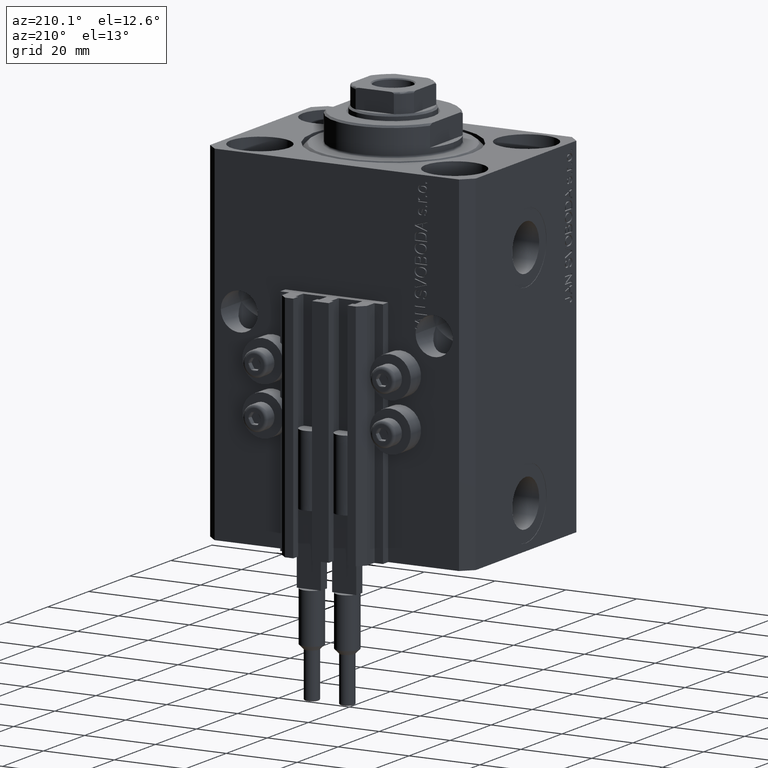
[diagram: clean part render]
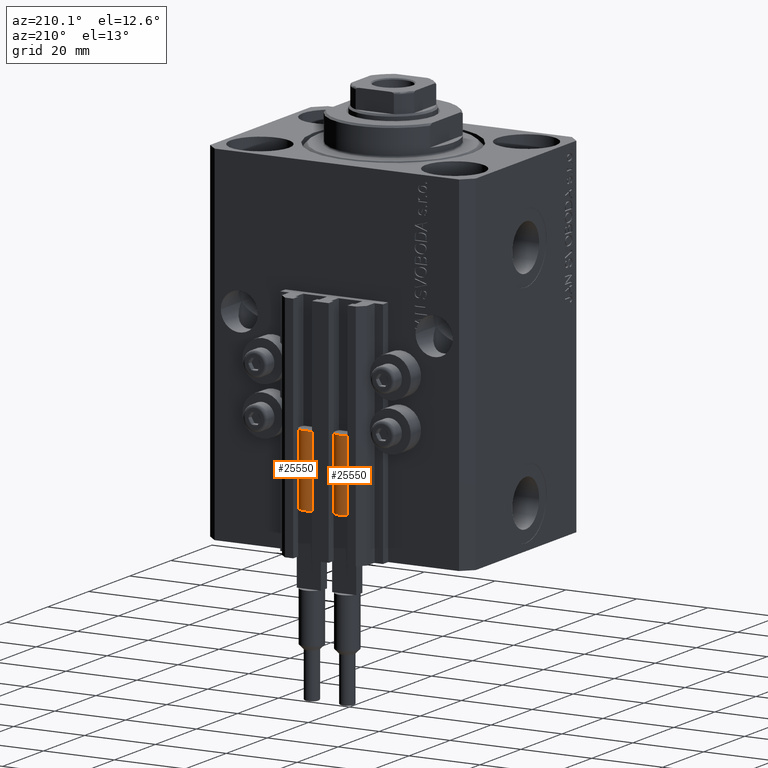
[diagram: same view with one multi-face feature highlighted, each face labeled with its STEP entity id]
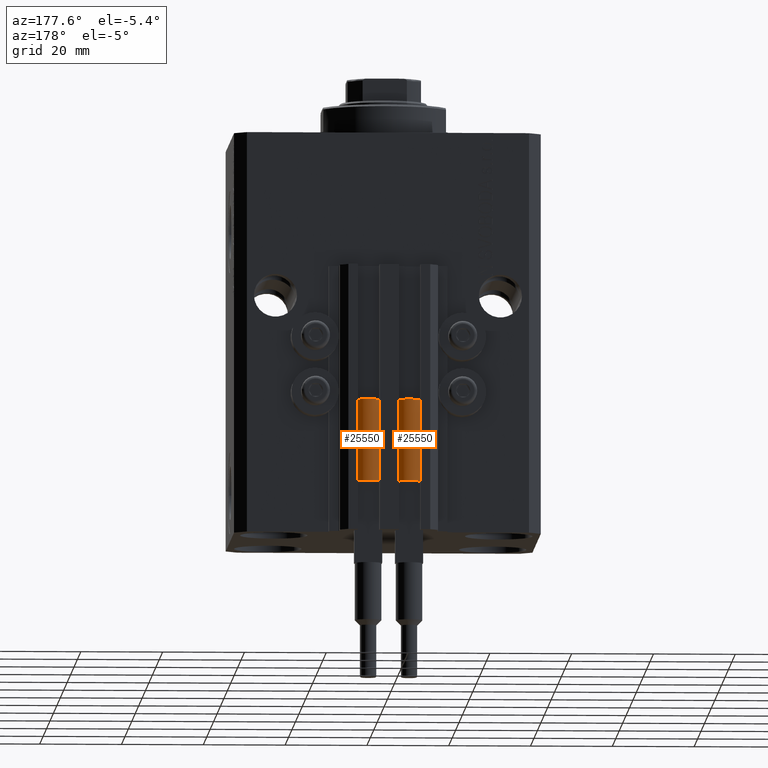
[diagram: same view with one multi-face feature highlighted, each face labeled with its STEP entity id]
A machine part, auxiliary view. The highlighted faces form ONE feature: a constant-radius fillet chain: 2 tangent blend faces with common blend radius 3.4 mm. The faces share edges in the B-rep.
A second angle (auxiliary view) of the same feature is appended — it is thin or edge-on in the first view.
Their STEP definitions:
[1] entity #25550 (Cylinder):
#1677 = CARTESIAN_POINT ( 'NONE',  ( 3.400000000000000355, 4.163799117101001052E-16, 0.000000000000000000 ) ) ;
#1744 = VERTEX_POINT ( 'NONE', #46341 ) ;
#2896 = DIRECTION ( 'NONE',  ( 0.000000000000000000, 0.000000000000000000, 1.000000000000000000 ) ) ;
#3733 = CYLINDRICAL_SURFACE ( 'NONE', #35802, 3.400000000000000355 ) ;
#3771 = VERTEX_POINT ( 'NONE', #24180 ) ;
#3959 = DIRECTION ( 'NONE',  ( 1.000000000000000000, 0.000000000000000000, 0.000000000000000000 ) ) ;
#3973 = FACE_OUTER_BOUND ( 'NONE', #19048, .T. ) ;
#4016 = AXIS2_PLACEMENT_3D ( 'NONE', #27557, #42419, #45835 ) ;
#4506 = DIRECTION ( 'NONE',  ( 1.000000000000000000, 0.000000000000000000, 0.000000000000000000 ) ) ;
#5475 = CIRCLE ( 'NONE', #4016, 3.400000000000000355 ) ;
#5848 = AXIS2_PLACEMENT_3D ( 'NONE', #48202, #2896, #17761 ) ;
#6674 = EDGE_CURVE ( 'NONE', #3771, #15572, #26857, .T. ) ;
#6874 = EDGE_CURVE ( 'NONE', #3771, #13173, #33274, .T. ) ;
#8393 = CIRCLE ( 'NONE', #12294, 3.400000000000000355 ) ;
#9678 = CARTESIAN_POINT ( 'NONE',  ( -3.400000000000000355, 0.000000000000000000, 0.000000000000000000 ) ) ;
#10804 = DIRECTION ( 'NONE',  ( -1.000000000000000000, 0.000000000000000000, 0.000000000000000000 ) ) ;
#11683 = VERTEX_POINT ( 'NONE', #40732 ) ;
#12294 = AXIS2_PLACEMENT_3D ( 'NONE', #37337, #41224, #3959 ) ;
#13173 = VERTEX_POINT ( 'NONE', #1677 ) ;
#14280 = CARTESIAN_POINT ( 'NONE',  ( 3.400000000000000355, 4.163799117101001052E-16, 20.00000000000000000 ) ) ;
#15572 = VERTEX_POINT ( 'NONE', #29239 ) ;
#16960 = ORIENTED_EDGE ( 'NONE', *, *, #26999, .F. ) ;
#17761 = DIRECTION ( 'NONE',  ( 1.000000000000000000, 0.000000000000000000, 0.000000000000000000 ) ) ;
#18275 = VERTEX_POINT ( 'NONE', #9678 ) ;
#18722 = VECTOR ( 'NONE', #26592, 1000.000000000000000 ) ;
#19048 = EDGE_LOOP ( 'NONE', ( #22198, #42381, #25069, #32093, #16960, #47542 ) ) ;
#21114 = DIRECTION ( 'NONE',  ( -0.000000000000000000, -0.000000000000000000, -1.000000000000000000 ) ) ;
#22159 = VECTOR ( 'NONE', #21114, 1000.000000000000000 ) ;
#22198 = ORIENTED_EDGE ( 'NONE', *, *, #6674, .F. ) ;
#24180 = CARTESIAN_POINT ( 'NONE',  ( 3.400000000000000355, 0.000000000000000000, 20.00000000000000000 ) ) ;
#25063 = AXIS2_PLACEMENT_3D ( 'NONE', #34473, #30332, #4506 ) ;
#25069 = ORIENTED_EDGE ( 'NONE', *, *, #39800, .T. ) ;
#25550 = ADVANCED_FACE ( 'NONE', ( #3973 ), #3733, .T. ) ;
#26192 = EDGE_CURVE ( 'NONE', #11683, #18275, #41693, .T. ) ;
#26592 = DIRECTION ( 'NONE',  ( -0.000000000000000000, -0.000000000000000000, -1.000000000000000000 ) ) ;
#26857 = CIRCLE ( 'NONE', #5848, 3.400000000000000355 ) ;
#26999 = EDGE_CURVE ( 'NONE', #1744, #11683, #8393, .T. ) ;
#27557 = CARTESIAN_POINT ( 'NONE',  ( 0.000000000000000000, 0.000000000000000000, 20.00000000000000000 ) ) ;
#29239 = CARTESIAN_POINT ( 'NONE',  ( 3.051229260478471428, 1.500000000000000000, 20.00000000000000000 ) ) ;
#29560 = CARTESIAN_POINT ( 'NONE',  ( 0.000000000000000000, 0.000000000000000000, 20.00000000000000000 ) ) ;
#30332 = DIRECTION ( 'NONE',  ( 0.000000000000000000, 0.000000000000000000, 1.000000000000000000 ) ) ;
#32093 = ORIENTED_EDGE ( 'NONE', *, *, #26192, .F. ) ;
#33274 = LINE ( 'NONE', #14280, #22159 ) ;
#34473 = CARTESIAN_POINT ( 'NONE',  ( 0.000000000000000000, 0.000000000000000000, 0.000000000000000000 ) ) ;
#35802 = AXIS2_PLACEMENT_3D ( 'NONE', #29560, #48081, #10804 ) ;
#35939 = EDGE_CURVE ( 'NONE', #15572, #1744, #5475, .T. ) ;
#37337 = CARTESIAN_POINT ( 'NONE',  ( 0.000000000000000000, 0.000000000000000000, 20.00000000000000000 ) ) ;
#38034 = CARTESIAN_POINT ( 'NONE',  ( -3.400000000000000355, 0.000000000000000000, 20.00000000000000000 ) ) ;
#39800 = EDGE_CURVE ( 'NONE', #13173, #18275, #46852, .T. ) ;
#40732 = CARTESIAN_POINT ( 'NONE',  ( -3.399999999999999467, -4.915049848600952119E-16, 20.00000000000000000 ) ) ;
#41224 = DIRECTION ( 'NONE',  ( 0.000000000000000000, 0.000000000000000000, 1.000000000000000000 ) ) ;
#41693 = LINE ( 'NONE', #38034, #18722 ) ;
#42381 = ORIENTED_EDGE ( 'NONE', *, *, #6874, .T. ) ;
#42419 = DIRECTION ( 'NONE',  ( 0.000000000000000000, 0.000000000000000000, 1.000000000000000000 ) ) ;
#45835 = DIRECTION ( 'NONE',  ( 1.000000000000000000, 0.000000000000000000, 0.000000000000000000 ) ) ;
#46341 = CARTESIAN_POINT ( 'NONE',  ( -3.051229260478471428, 1.500000000000000000, 20.00000000000000000 ) ) ;
#46852 = CIRCLE ( 'NONE', #25063, 3.400000000000000355 ) ;
#47542 = ORIENTED_EDGE ( 'NONE', *, *, #35939, .F. ) ;
#48081 = DIRECTION ( 'NONE',  ( -0.000000000000000000, -0.000000000000000000, -1.000000000000000000 ) ) ;
#48202 = CARTESIAN_POINT ( 'NONE',  ( 0.000000000000000000, 0.000000000000000000, 20.00000000000000000 ) ) ;
[2] entity #25550 (Cylinder):
#1677 = CARTESIAN_POINT ( 'NONE',  ( 3.400000000000000355, 4.163799117101001052E-16, 0.000000000000000000 ) ) ;
#1744 = VERTEX_POINT ( 'NONE', #46341 ) ;
#2896 = DIRECTION ( 'NONE',  ( 0.000000000000000000, 0.000000000000000000, 1.000000000000000000 ) ) ;
#3733 = CYLINDRICAL_SURFACE ( 'NONE', #35802, 3.400000000000000355 ) ;
#3771 = VERTEX_POINT ( 'NONE', #24180 ) ;
#3959 = DIRECTION ( 'NONE',  ( 1.000000000000000000, 0.000000000000000000, 0.000000000000000000 ) ) ;
#3973 = FACE_OUTER_BOUND ( 'NONE', #19048, .T. ) ;
#4016 = AXIS2_PLACEMENT_3D ( 'NONE', #27557, #42419, #45835 ) ;
#4506 = DIRECTION ( 'NONE',  ( 1.000000000000000000, 0.000000000000000000, 0.000000000000000000 ) ) ;
#5475 = CIRCLE ( 'NONE', #4016, 3.400000000000000355 ) ;
#5848 = AXIS2_PLACEMENT_3D ( 'NONE', #48202, #2896, #17761 ) ;
#6674 = EDGE_CURVE ( 'NONE', #3771, #15572, #26857, .T. ) ;
#6874 = EDGE_CURVE ( 'NONE', #3771, #13173, #33274, .T. ) ;
#8393 = CIRCLE ( 'NONE', #12294, 3.400000000000000355 ) ;
#9678 = CARTESIAN_POINT ( 'NONE',  ( -3.400000000000000355, 0.000000000000000000, 0.000000000000000000 ) ) ;
#10804 = DIRECTION ( 'NONE',  ( -1.000000000000000000, 0.000000000000000000, 0.000000000000000000 ) ) ;
#11683 = VERTEX_POINT ( 'NONE', #40732 ) ;
#12294 = AXIS2_PLACEMENT_3D ( 'NONE', #37337, #41224, #3959 ) ;
#13173 = VERTEX_POINT ( 'NONE', #1677 ) ;
#14280 = CARTESIAN_POINT ( 'NONE',  ( 3.400000000000000355, 4.163799117101001052E-16, 20.00000000000000000 ) ) ;
#15572 = VERTEX_POINT ( 'NONE', #29239 ) ;
#16960 = ORIENTED_EDGE ( 'NONE', *, *, #26999, .F. ) ;
#17761 = DIRECTION ( 'NONE',  ( 1.000000000000000000, 0.000000000000000000, 0.000000000000000000 ) ) ;
#18275 = VERTEX_POINT ( 'NONE', #9678 ) ;
#18722 = VECTOR ( 'NONE', #26592, 1000.000000000000000 ) ;
#19048 = EDGE_LOOP ( 'NONE', ( #22198, #42381, #25069, #32093, #16960, #47542 ) ) ;
#21114 = DIRECTION ( 'NONE',  ( -0.000000000000000000, -0.000000000000000000, -1.000000000000000000 ) ) ;
#22159 = VECTOR ( 'NONE', #21114, 1000.000000000000000 ) ;
#22198 = ORIENTED_EDGE ( 'NONE', *, *, #6674, .F. ) ;
#24180 = CARTESIAN_POINT ( 'NONE',  ( 3.400000000000000355, 0.000000000000000000, 20.00000000000000000 ) ) ;
#25063 = AXIS2_PLACEMENT_3D ( 'NONE', #34473, #30332, #4506 ) ;
#25069 = ORIENTED_EDGE ( 'NONE', *, *, #39800, .T. ) ;
#25550 = ADVANCED_FACE ( 'NONE', ( #3973 ), #3733, .T. ) ;
#26192 = EDGE_CURVE ( 'NONE', #11683, #18275, #41693, .T. ) ;
#26592 = DIRECTION ( 'NONE',  ( -0.000000000000000000, -0.000000000000000000, -1.000000000000000000 ) ) ;
#26857 = CIRCLE ( 'NONE', #5848, 3.400000000000000355 ) ;
#26999 = EDGE_CURVE ( 'NONE', #1744, #11683, #8393, .T. ) ;
#27557 = CARTESIAN_POINT ( 'NONE',  ( 0.000000000000000000, 0.000000000000000000, 20.00000000000000000 ) ) ;
#29239 = CARTESIAN_POINT ( 'NONE',  ( 3.051229260478471428, 1.500000000000000000, 20.00000000000000000 ) ) ;
#29560 = CARTESIAN_POINT ( 'NONE',  ( 0.000000000000000000, 0.000000000000000000, 20.00000000000000000 ) ) ;
#30332 = DIRECTION ( 'NONE',  ( 0.000000000000000000, 0.000000000000000000, 1.000000000000000000 ) ) ;
#32093 = ORIENTED_EDGE ( 'NONE', *, *, #26192, .F. ) ;
#33274 = LINE ( 'NONE', #14280, #22159 ) ;
#34473 = CARTESIAN_POINT ( 'NONE',  ( 0.000000000000000000, 0.000000000000000000, 0.000000000000000000 ) ) ;
#35802 = AXIS2_PLACEMENT_3D ( 'NONE', #29560, #48081, #10804 ) ;
#35939 = EDGE_CURVE ( 'NONE', #15572, #1744, #5475, .T. ) ;
#37337 = CARTESIAN_POINT ( 'NONE',  ( 0.000000000000000000, 0.000000000000000000, 20.00000000000000000 ) ) ;
#38034 = CARTESIAN_POINT ( 'NONE',  ( -3.400000000000000355, 0.000000000000000000, 20.00000000000000000 ) ) ;
#39800 = EDGE_CURVE ( 'NONE', #13173, #18275, #46852, .T. ) ;
#40732 = CARTESIAN_POINT ( 'NONE',  ( -3.399999999999999467, -4.915049848600952119E-16, 20.00000000000000000 ) ) ;
#41224 = DIRECTION ( 'NONE',  ( 0.000000000000000000, 0.000000000000000000, 1.000000000000000000 ) ) ;
#41693 = LINE ( 'NONE', #38034, #18722 ) ;
#42381 = ORIENTED_EDGE ( 'NONE', *, *, #6874, .T. ) ;
#42419 = DIRECTION ( 'NONE',  ( 0.000000000000000000, 0.000000000000000000, 1.000000000000000000 ) ) ;
#45835 = DIRECTION ( 'NONE',  ( 1.000000000000000000, 0.000000000000000000, 0.000000000000000000 ) ) ;
#46341 = CARTESIAN_POINT ( 'NONE',  ( -3.051229260478471428, 1.500000000000000000, 20.00000000000000000 ) ) ;
#46852 = CIRCLE ( 'NONE', #25063, 3.400000000000000355 ) ;
#47542 = ORIENTED_EDGE ( 'NONE', *, *, #35939, .F. ) ;
#48081 = DIRECTION ( 'NONE',  ( -0.000000000000000000, -0.000000000000000000, -1.000000000000000000 ) ) ;
#48202 = CARTESIAN_POINT ( 'NONE',  ( 0.000000000000000000, 0.000000000000000000, 20.00000000000000000 ) ) ;